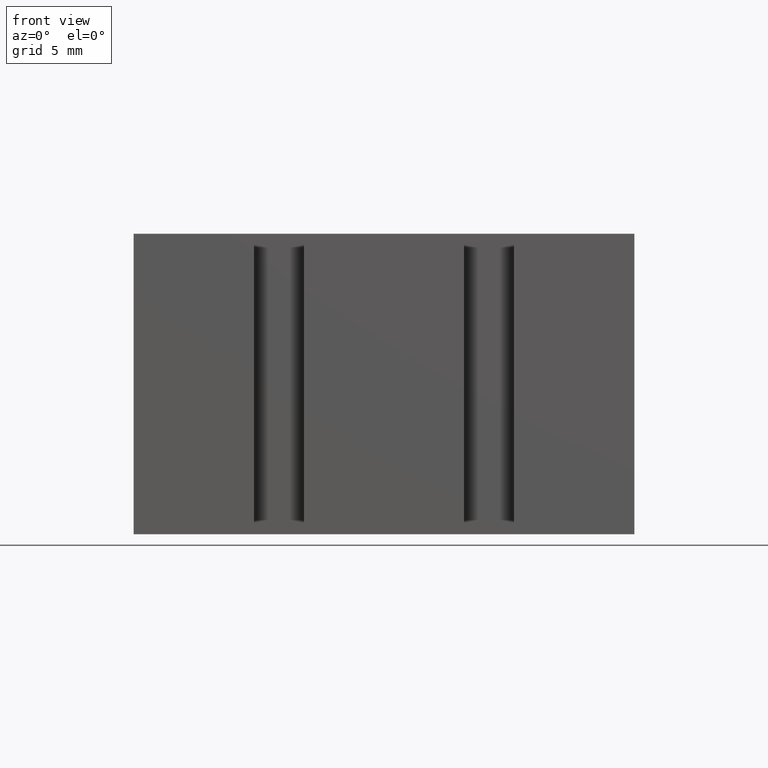
[diagram: clean part render]
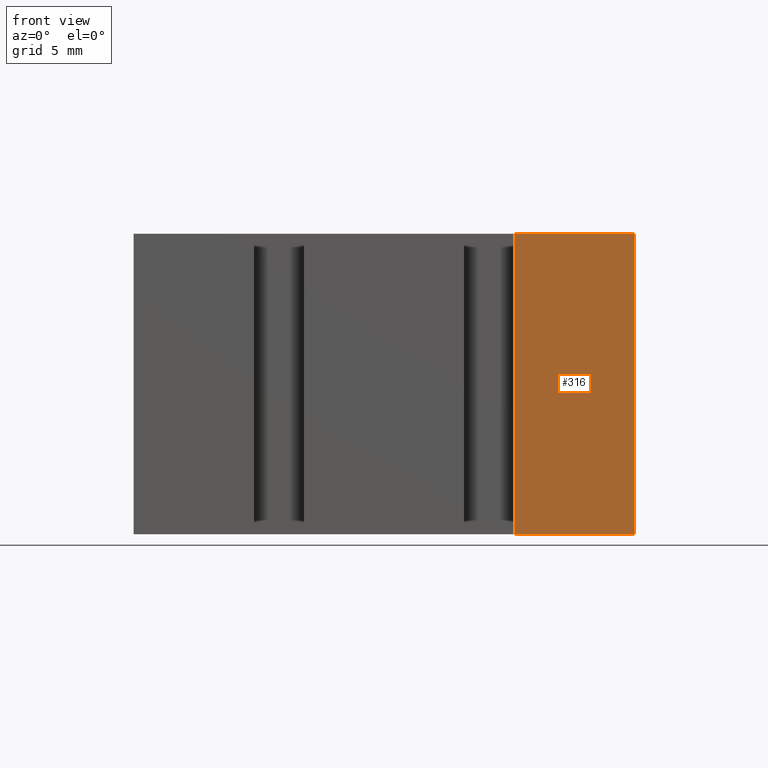
[diagram: same view with one face highlighted and labeled with its STEP entity id]
A machine part, front view. The second image highlights one B-rep face of the part: STEP entity #316.
In plain terms, the highlighted planar face has unit normal (0, -1, 0).
Its self-contained STEP definition (entity closure, byte-faithful):
#30=FACE_OUTER_BOUND('',#46,.T.);
#46=EDGE_LOOP('',(#268,#269,#270,#271));
#49=LINE('',#439,#91);
#64=LINE('',#468,#106);
#88=LINE('',#516,#130);
#89=LINE('',#518,#131);
#91=VECTOR('',#362,10.);
#106=VECTOR('',#379,10.);
#130=VECTOR('',#427,10.);
#131=VECTOR('',#430,10.);
#132=VERTEX_POINT('',#435);
#134=VERTEX_POINT('',#438);
#146=VERTEX_POINT('',#464);
#159=VERTEX_POINT('',#514);
#161=EDGE_CURVE('',#134,#132,#49,.T.);
#176=EDGE_CURVE('',#146,#134,#64,.T.);
#200=EDGE_CURVE('',#132,#159,#88,.T.);
#201=EDGE_CURVE('',#159,#146,#89,.T.);
#268=ORIENTED_EDGE('',*,*,#201,.T.);
#269=ORIENTED_EDGE('',*,*,#176,.T.);
#270=ORIENTED_EDGE('',*,*,#161,.T.);
#271=ORIENTED_EDGE('',*,*,#200,.T.);
#300=PLANE('',#355);
#316=ADVANCED_FACE('',(#30),#300,.T.);
#355=AXIS2_PLACEMENT_3D('',#517,#428,#429);
#362=DIRECTION('',(1.,0.,0.));
#379=DIRECTION('',(0.,0.,-1.));
#427=DIRECTION('',(0.,0.,1.));
#428=DIRECTION('center_axis',(0.,-1.,0.));
#429=DIRECTION('ref_axis',(0.,0.,-1.));
#430=DIRECTION('',(-1.,0.,0.));
#435=CARTESIAN_POINT('',(12.5,0.,-7.5));
#438=CARTESIAN_POINT('',(6.5,0.,-7.5));
#439=CARTESIAN_POINT('',(12.5,0.,-7.5));
#464=CARTESIAN_POINT('',(6.5,0.,7.5));
#468=CARTESIAN_POINT('',(6.5,0.,0.));
#514=CARTESIAN_POINT('',(12.5,0.,7.5));
#516=CARTESIAN_POINT('',(12.5,0.,0.));
#517=CARTESIAN_POINT('Origin',(12.5,0.,0.));
#518=CARTESIAN_POINT('',(12.5,0.,7.5));